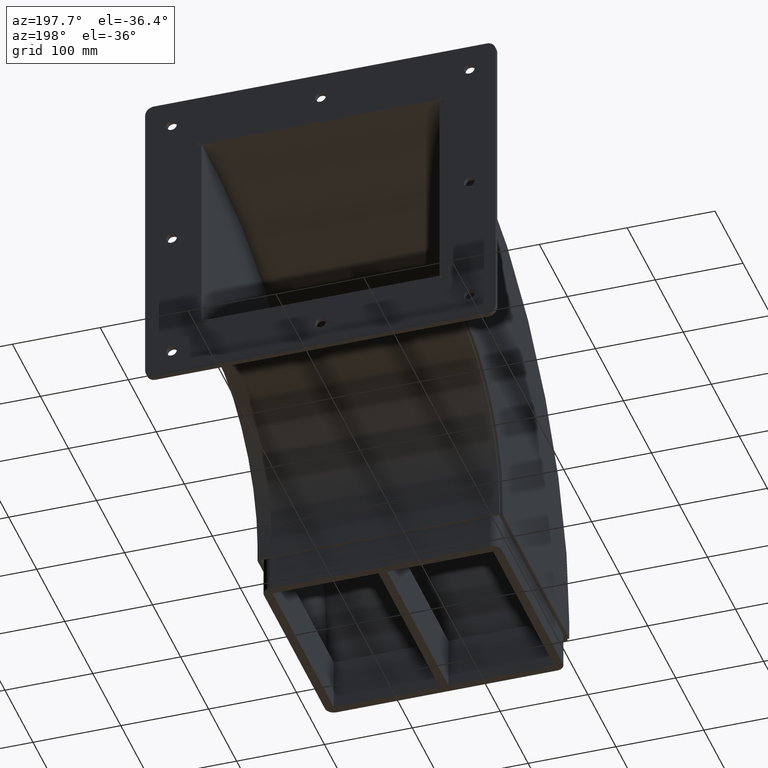
[diagram: clean part render]
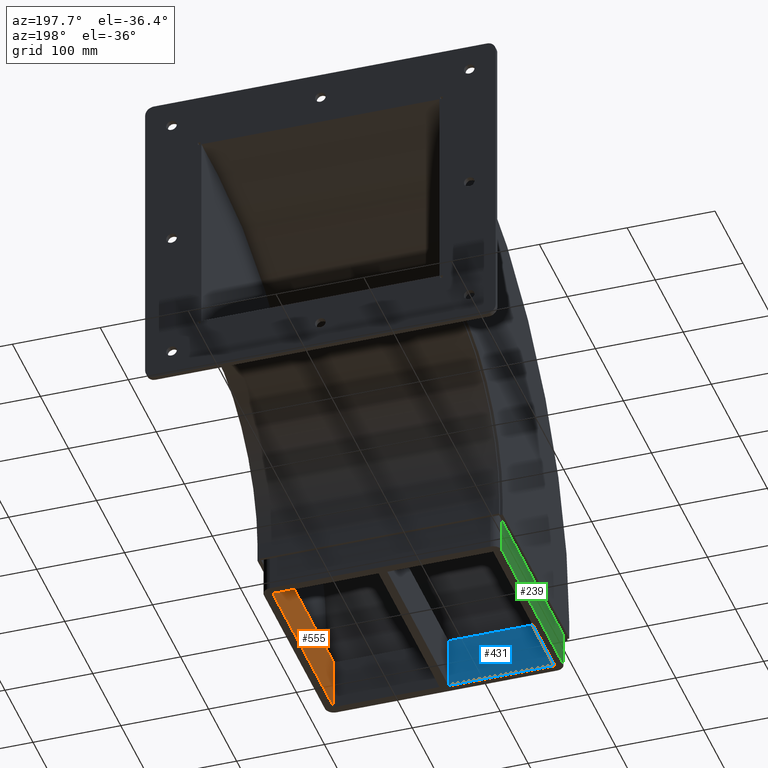
[diagram: same view with three faces highlighted in distinct colors, each labeled with its STEP entity id]
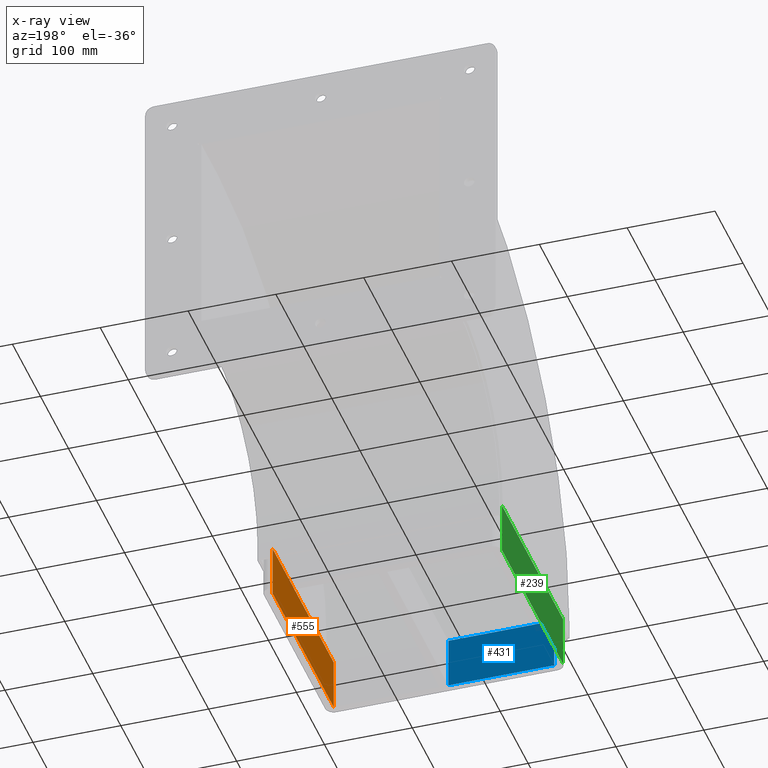
[diagram: x-ray of the same camera — body ghosted, the three highlighted faces saturated]
A machine part, auxiliary view with three faces highlighted in distinct colors.
The next image is the same camera in x-ray (body ghosted, the three faces saturated) — at least one of them is partly hidden behind the body in this view.
Their STEP definitions:

[orange] entity #555 — the highlighted planar face has unit normal (-1, 0, 0).
#516=CARTESIAN_POINT('',(111.499999999999770,2.000000000000341,-30.0));
#517=DIRECTION('',(-1.0,0.0,0.0));
#518=DIRECTION('',(0.0,0.0,1.0));
#519=AXIS2_PLACEMENT_3D('',#516,#517,#518);
#520=PLANE('',#519);
#521=CARTESIAN_POINT('',(111.499999999999770,2.000000000000341,30.0));
#522=VERTEX_POINT('',#521);
#523=CARTESIAN_POINT('',(111.499999999999770,220.000000000000340,30.0));
#524=VERTEX_POINT('',#523);
#525=CARTESIAN_POINT('',(111.499999999999770,2.000000000000341,30.0));
#526=DIRECTION('',(0.0,1.0,0.0));
#527=VECTOR('',#526,218.0);
#528=LINE('',#525,#527);
#529=EDGE_CURVE('',#522,#524,#528,.T.);
#530=ORIENTED_EDGE('',*,*,#529,.T.);
#531=CARTESIAN_POINT('',(111.499999999999770,220.000000000000340,-30.0));
#532=VERTEX_POINT('',#531);
#533=CARTESIAN_POINT('',(111.499999999999770,220.000000000000340,-30.0));
#534=DIRECTION('',(0.0,0.0,1.0));
#535=VECTOR('',#534,60.0);
#536=LINE('',#533,#535);
#537=EDGE_CURVE('',#532,#524,#536,.T.);
#538=ORIENTED_EDGE('',*,*,#537,.F.);
#539=CARTESIAN_POINT('',(111.499999999999770,2.000000000000341,-30.0));
#540=VERTEX_POINT('',#539);
#541=CARTESIAN_POINT('',(111.499999999999770,220.000000000000340,-30.0));
#542=DIRECTION('',(0.0,-1.0,0.0));
#543=VECTOR('',#542,218.0);
#544=LINE('',#541,#543);
#545=EDGE_CURVE('',#532,#540,#544,.T.);
#546=ORIENTED_EDGE('',*,*,#545,.T.);
#547=CARTESIAN_POINT('',(111.499999999999770,2.000000000000341,-30.0));
#548=DIRECTION('',(0.0,0.0,1.0));
#549=VECTOR('',#548,60.0);
#550=LINE('',#547,#549);
#551=EDGE_CURVE('',#540,#522,#550,.T.);
#552=ORIENTED_EDGE('',*,*,#551,.T.);
#553=EDGE_LOOP('',(#530,#538,#546,#552));
#554=FACE_OUTER_BOUND('',#553,.T.);
#555=ADVANCED_FACE('',(#554),#520,.T.);

[blue] entity #431 — the highlighted planar face has unit normal (0, 1, 0).
#392=CARTESIAN_POINT('',(-139.500000000000230,2.000000000000341,-30.0));
#393=DIRECTION('',(0.0,1.0,0.0));
#394=DIRECTION('',(0.0,0.0,1.0));
#395=AXIS2_PLACEMENT_3D('',#392,#393,#394);
#396=PLANE('',#395);
#397=CARTESIAN_POINT('',(-139.500000000000230,2.000000000000341,30.0));
#398=VERTEX_POINT('',#397);
#399=CARTESIAN_POINT('',(-19.000000000000227,2.000000000000341,30.0));
#400=VERTEX_POINT('',#399);
#401=CARTESIAN_POINT('',(-139.500000000000230,2.000000000000341,30.0));
#402=DIRECTION('',(1.0,0.0,0.0));
#403=VECTOR('',#402,120.500000000000000);
#404=LINE('',#401,#403);
#405=EDGE_CURVE('',#398,#400,#404,.T.);
#406=ORIENTED_EDGE('',*,*,#405,.T.);
#407=CARTESIAN_POINT('',(-19.000000000000227,2.000000000000341,-30.0));
#408=VERTEX_POINT('',#407);
#409=CARTESIAN_POINT('',(-19.000000000000227,2.000000000000341,-30.0));
#410=DIRECTION('',(0.0,0.0,1.0));
#411=VECTOR('',#410,60.0);
#412=LINE('',#409,#411);
#413=EDGE_CURVE('',#408,#400,#412,.T.);
#414=ORIENTED_EDGE('',*,*,#413,.F.);
#415=CARTESIAN_POINT('',(-139.500000000000230,2.000000000000341,-30.0));
#416=VERTEX_POINT('',#415);
#417=CARTESIAN_POINT('',(-19.000000000000227,2.000000000000341,-30.0));
#418=DIRECTION('',(-1.0,0.0,0.0));
#419=VECTOR('',#418,120.500000000000000);
#420=LINE('',#417,#419);
#421=EDGE_CURVE('',#408,#416,#420,.T.);
#422=ORIENTED_EDGE('',*,*,#421,.T.);
#423=CARTESIAN_POINT('',(-139.500000000000230,2.000000000000341,-30.0));
#424=DIRECTION('',(0.0,0.0,1.0));
#425=VECTOR('',#424,60.0);
#426=LINE('',#423,#425);
#427=EDGE_CURVE('',#416,#398,#426,.T.);
#428=ORIENTED_EDGE('',*,*,#427,.T.);
#429=EDGE_LOOP('',(#406,#414,#422,#428));
#430=FACE_OUTER_BOUND('',#429,.T.);
#431=ADVANCED_FACE('',(#430),#396,.T.);

[green] entity #239 — the highlighted planar face has unit normal (-1, 0, 0).
#181=CARTESIAN_POINT('',(-149.500000000000230,2.000000000000341,30.0));
#182=VERTEX_POINT('',#181);
#190=CARTESIAN_POINT('',(-149.500000000000230,2.000000000000341,-30.0));
#191=VERTEX_POINT('',#190);
#192=CARTESIAN_POINT('',(-149.500000000000230,2.000000000000341,-30.0));
#193=DIRECTION('',(0.0,0.0,1.0));
#194=VECTOR('',#193,60.0);
#195=LINE('',#192,#194);
#196=EDGE_CURVE('',#191,#182,#195,.T.);
#209=CARTESIAN_POINT('',(-149.500000000000230,6.000000000000341,-30.0));
#210=DIRECTION('',(-1.0,0.0,0.0));
#211=DIRECTION('',(0.0,0.0,1.0));
#212=AXIS2_PLACEMENT_3D('',#209,#210,#211);
#213=PLANE('',#212);
#214=CARTESIAN_POINT('',(-149.500000000000230,220.000000000000340,30.0));
#215=VERTEX_POINT('',#214);
#216=CARTESIAN_POINT('',(-149.500000000000230,2.000000000000341,30.0));
#217=DIRECTION('',(0.0,1.0,0.0));
#218=VECTOR('',#217,218.0);
#219=LINE('',#216,#218);
#220=EDGE_CURVE('',#182,#215,#219,.T.);
#221=ORIENTED_EDGE('',*,*,#220,.T.);
#222=CARTESIAN_POINT('',(-149.500000000000230,220.000000000000340,-30.0));
#223=VERTEX_POINT('',#222);
#224=CARTESIAN_POINT('',(-149.500000000000230,220.000000000000340,-30.0));
#225=DIRECTION('',(0.0,0.0,1.0));
#226=VECTOR('',#225,60.0);
#227=LINE('',#224,#226);
#228=EDGE_CURVE('',#223,#215,#227,.T.);
#229=ORIENTED_EDGE('',*,*,#228,.F.);
#230=CARTESIAN_POINT('',(-149.500000000000230,220.000000000000340,-30.0));
#231=DIRECTION('',(0.0,-1.0,0.0));
#232=VECTOR('',#231,218.0);
#233=LINE('',#230,#232);
#234=EDGE_CURVE('',#223,#191,#233,.T.);
#235=ORIENTED_EDGE('',*,*,#234,.T.);
#236=ORIENTED_EDGE('',*,*,#196,.T.);
#237=EDGE_LOOP('',(#221,#229,#235,#236));
#238=FACE_OUTER_BOUND('',#237,.T.);
#239=ADVANCED_FACE('',(#238),#213,.T.);